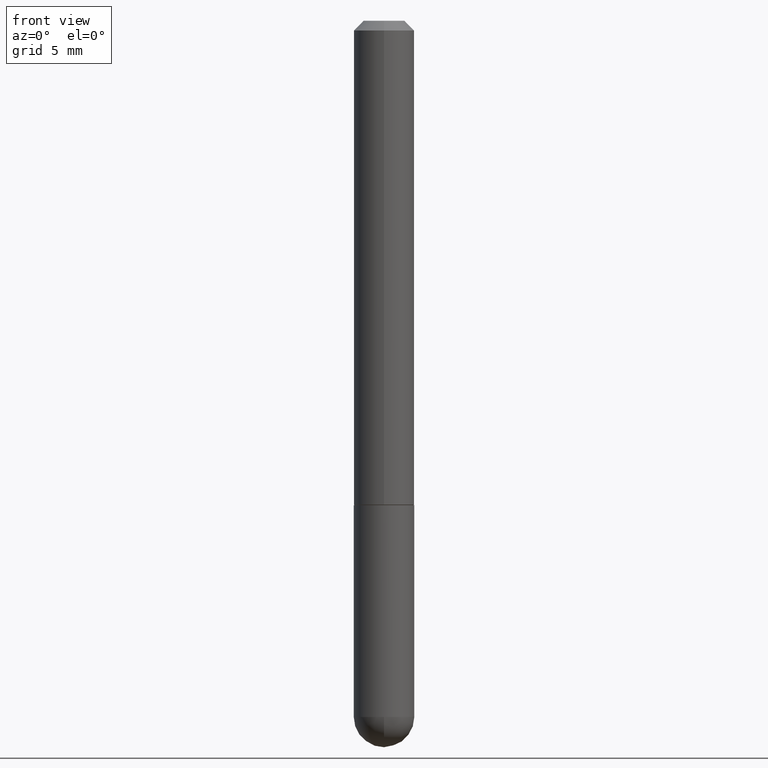
[diagram: clean part render]
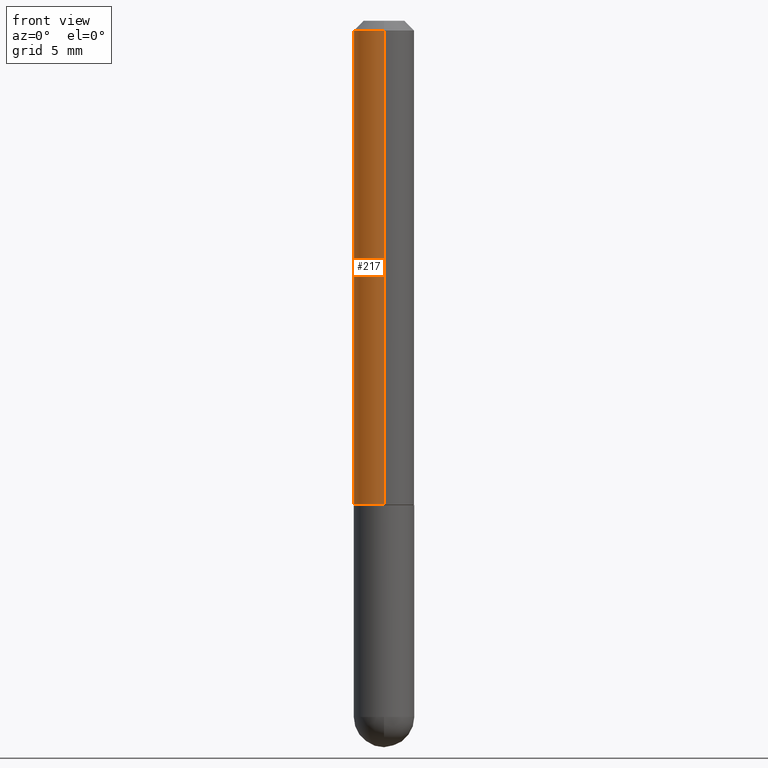
[diagram: same view with one face highlighted and labeled with its STEP entity id]
A machine part, front view. The second image highlights one B-rep face of the part: STEP entity #217.
In plain terms, the highlighted cylindrical surface (edge-blend (fillet) strip) has radius 1.5875 mm, axis along (-0, 0, 1).
Its self-contained STEP definition (entity closure, byte-faithful):
#35 = CIRCLE ( 'NONE', #69, 0.06250000000000001388 ) ;
#65 = CARTESIAN_POINT ( 'NONE',  ( 0.000000000000000000, 0.000000000000000000, 0.000000000000000000 ) ) ;
#69 = AXIS2_PLACEMENT_3D ( 'NONE', #83, #177, #149 ) ;
#76 = CYLINDRICAL_SURFACE ( 'NONE', #240, 0.06250000000000004163 ) ;
#81 = EDGE_CURVE ( 'NONE', #180, #394, #355, .T. ) ;
#83 = CARTESIAN_POINT ( 'NONE',  ( 4.920450195540008493E-31, -6.940698978835360115E-17, -0.02000000000000006981 ) ) ;
#92 = FACE_OUTER_BOUND ( 'NONE', #95, .T. ) ;
#95 = EDGE_LOOP ( 'NONE', ( #204, #315, #257, #298 ) ) ;
#101 = VECTOR ( 'NONE', #112, 39.37007874015748143 ) ;
#111 = AXIS2_PLACEMENT_3D ( 'NONE', #122, #150, #245 ) ;
#112 = DIRECTION ( 'NONE',  ( -2.460225097769996171E-29, 3.470349489417668175E-15, 1.000000000000000000 ) ) ;
#114 = VERTEX_POINT ( 'NONE', #146 ) ;
#117 = CARTESIAN_POINT ( 'NONE',  ( 4.440892098500628134E-16, 0.06250000000000004163, -2.168968430886044335E-16 ) ) ;
#121 = CIRCLE ( 'NONE', #111, 0.06250000000000006939 ) ;
#122 = CARTESIAN_POINT ( 'NONE',  ( 2.457764872672225560E-29, -3.466879139928250536E-15, -0.9989999999999998881 ) ) ;
#146 = CARTESIAN_POINT ( 'NONE',  ( 4.440892098500754352E-16, 0.06249999999999659994, -0.9990000000000002212 ) ) ;
#149 = DIRECTION ( 'NONE',  ( -6.982962677686265922E-15, -1.000000000000000000, 3.483106191921934765E-15 ) ) ;
#150 = DIRECTION ( 'NONE',  ( -2.460225097769995891E-29, 3.470349489417668570E-15, 1.000000000000000000 ) ) ;
#161 = EDGE_CURVE ( 'NONE', #114, #281, #396, .T. ) ;
#171 = CARTESIAN_POINT ( 'NONE',  ( 4.364351673553922118E-16, 0.06249999999999995143, -0.02000000000000028491 ) ) ;
#174 = CARTESIAN_POINT ( 'NONE',  ( -4.364351673553675105E-16, -0.06250000000000353884, -0.9989999999999996660 ) ) ;
#177 = DIRECTION ( 'NONE',  ( -2.460225097769995891E-29, 3.470349489417668570E-15, 1.000000000000000000 ) ) ;
#180 = VERTEX_POINT ( 'NONE', #174 ) ;
#190 = EDGE_CURVE ( 'NONE', #281, #394, #35, .T. ) ;
#194 = CARTESIAN_POINT ( 'NONE',  ( -4.364351673553919159E-16, -0.06250000000000004163, 2.168968430886044335E-16 ) ) ;
#204 = ORIENTED_EDGE ( 'NONE', *, *, #161, .F. ) ;
#206 = CARTESIAN_POINT ( 'NONE',  ( -4.287811248607203282E-16, -0.06250000000000008327, -0.01999999999999985123 ) ) ;
#217 = ADVANCED_FACE ( 'NONE', ( #92 ), #76, .T. ) ;
#234 = VECTOR ( 'NONE', #238, 39.37007874015748143 ) ;
#238 = DIRECTION ( 'NONE',  ( -2.460225097769996171E-29, 3.470349489417668175E-15, 1.000000000000000000 ) ) ;
#240 = AXIS2_PLACEMENT_3D ( 'NONE', #65, #243, #403 ) ;
#243 = DIRECTION ( 'NONE',  ( -2.460225097769995891E-29, 3.470349489417668570E-15, 1.000000000000000000 ) ) ;
#245 = DIRECTION ( 'NONE',  ( -6.982962677686265922E-15, -1.000000000000000000, 4.370956789862816416E-15 ) ) ;
#257 = ORIENTED_EDGE ( 'NONE', *, *, #81, .T. ) ;
#281 = VERTEX_POINT ( 'NONE', #171 ) ;
#298 = ORIENTED_EDGE ( 'NONE', *, *, #190, .F. ) ;
#306 = EDGE_CURVE ( 'NONE', #114, #180, #121, .T. ) ;
#315 = ORIENTED_EDGE ( 'NONE', *, *, #306, .T. ) ;
#355 = LINE ( 'NONE', #194, #101 ) ;
#394 = VERTEX_POINT ( 'NONE', #206 ) ;
#396 = LINE ( 'NONE', #117, #234 ) ;
#403 = DIRECTION ( 'NONE',  ( -6.982962677686265922E-15, -1.000000000000000000, 3.470349489417668570E-15 ) ) ;